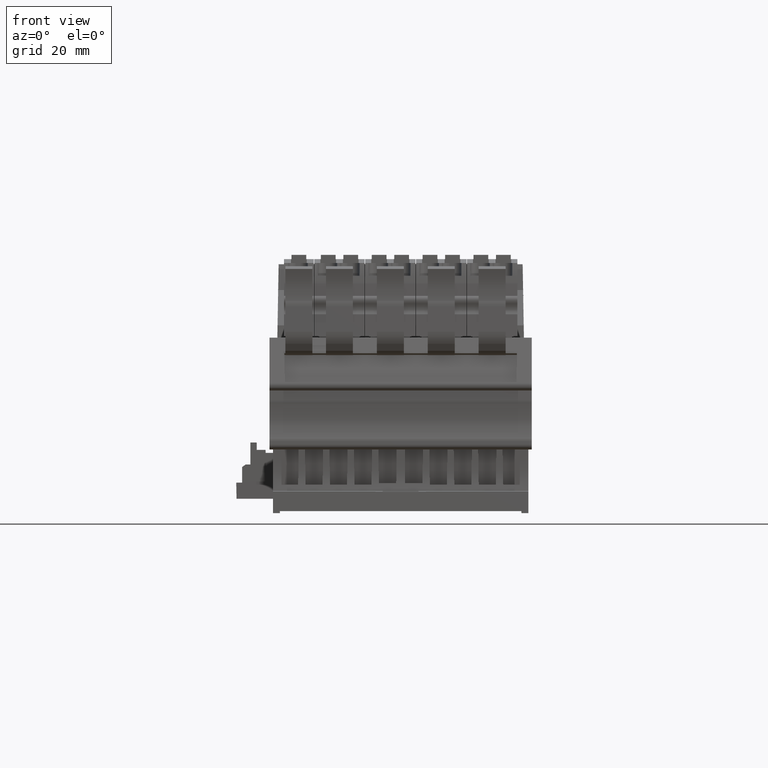
[diagram: clean part render]
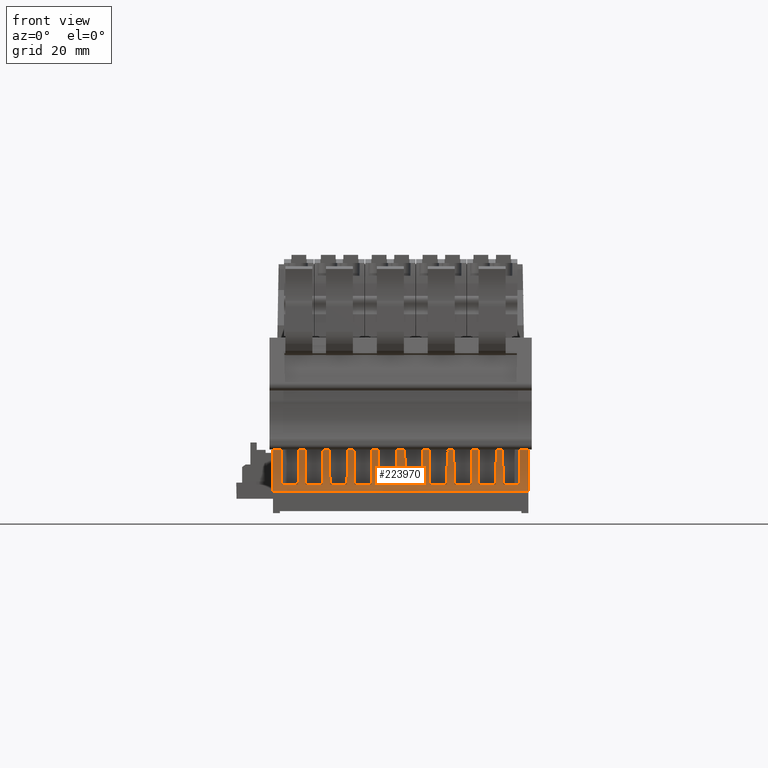
[diagram: same view with one face highlighted and labeled with its STEP entity id]
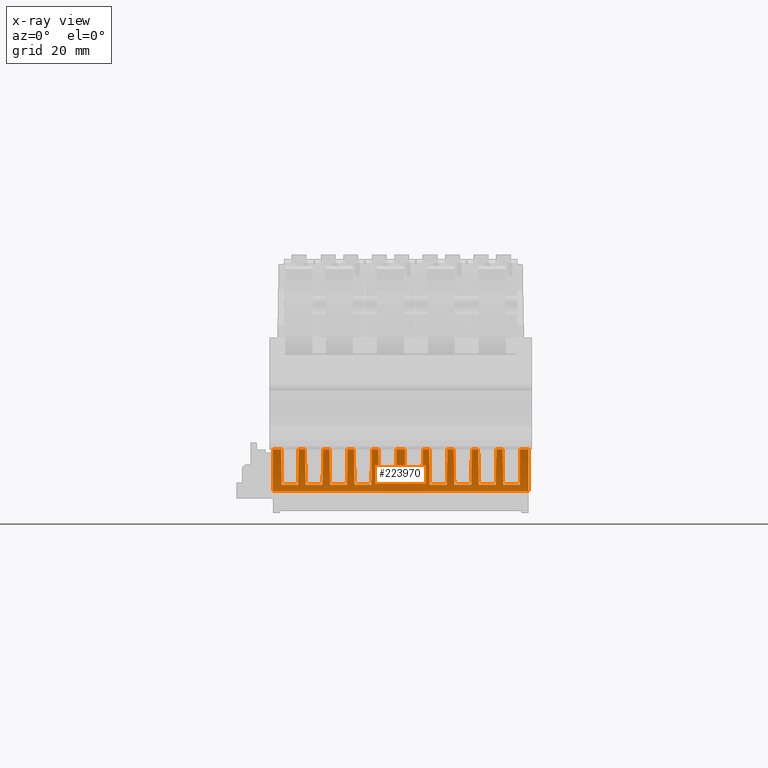
[diagram: x-ray of the same camera — body ghosted, the highlighted face saturated]
A machine part, front view. The second image highlights one B-rep face of the part: STEP entity #223970.
The next image is the same camera in x-ray: the body ghosted, the highlighted face saturated — about 0% of this face is hidden behind the body in this view.
In plain terms, the highlighted cylindrical surface (partial cylindrical patch) has radius 32 mm, axis along (1, -0, -0).
Its self-contained STEP definition (entity closure, byte-faithful):
#213490=CARTESIAN_POINT('',(-21.4767108285961,5.7217056416843,
-42.1775993676842));
#213500=VERTEX_POINT('',#213490);
#213530=CARTESIAN_POINT('',(-52.4261700066343,-2.29953549045469,
-40.8394411980242));
#213540=DIRECTION('',(-0.00212691331871282,-0.1565625763067,
-0.987665751122283));
#213550=DIRECTION('',(0.999997737947607,-0.000351191569832416,
-0.0020977998358443));
#213560=AXIS2_PLACEMENT_3D('',#213530,#213540,#213550);
#213570=CIRCLE('',#213560,32.);
#213580=CARTESIAN_POINT('',(-20.4274352971434,-2.58308955004722,
-40.8634013089389));
#213590=VERTEX_POINT('',#213580);
#213600=EDGE_CURVE('',#213500,#213590,#213570,.T.);
#216730=CARTESIAN_POINT('',(-21.4114944079329,10.5223011952702,
-11.8933262997047));
#216740=VERTEX_POINT('',#216730);
#216890=CARTESIAN_POINT('',(-21.4193854598595,9.94143906872818,
-15.5576606637827));
#216900=VERTEX_POINT('',#216890);
#216930=CARTESIAN_POINT('',(-21.5444742934244,0.733621587912445,
-73.6446325480882));
#216940=DIRECTION('',(0.00212691336374856,0.156562576312103,
0.98766575112133));
#216950=VECTOR('',#216940,1.);
#216960=LINE('',#216930,#216950);
#216970=CARTESIAN_POINT('',(-21.4230113197003,9.67453870141627,
-17.2413858423348));
#216980=VERTEX_POINT('',#216970);
#216990=EDGE_CURVE('',#216980,#216900,#216960,.T.);
#217210=CARTESIAN_POINT('',(-21.4309023716269,9.09367657487417,
-20.9057202064135));
#217220=VERTEX_POINT('',#217210);
#217250=CARTESIAN_POINT('',(-21.433614306859,8.89405040581441,
-22.1650500849334));
#217260=VERTEX_POINT('',#217250);
#217270=EDGE_CURVE('',#217260,#217220,#216960,.T.);
#217490=CARTESIAN_POINT('',(-21.4415369385032,8.31086368907266,
-25.8440489887742));
#217500=VERTEX_POINT('',#217490);
#217530=CARTESIAN_POINT('',(-21.4442488737275,8.11123752059278,
-27.103378863636));
#217540=VERTEX_POINT('',#217530);
#217550=EDGE_CURVE('',#217540,#217500,#216960,.T.);
#217770=CARTESIAN_POINT('',(-21.452171505322,7.52805080751209,
-30.7823777443812));
#217780=VERTEX_POINT('',#217770);
#217810=CARTESIAN_POINT('',(-21.4548834405462,7.32842463903232,
-32.0417076192423));
#217820=VERTEX_POINT('',#217810);
#217830=EDGE_CURVE('',#217820,#217780,#216960,.T.);
#218050=CARTESIAN_POINT('',(-21.4628060720903,6.74523792966375,
-35.7207064765698));
#218060=VERTEX_POINT('',#218050);
#218090=CARTESIAN_POINT('',(-21.4655180073145,6.5456117611836,
-36.9800363514333));
#218100=VERTEX_POINT('',#218090);
#218110=EDGE_CURVE('',#218100,#218060,#216960,.T.);
#218330=CARTESIAN_POINT('',(-21.4731128736271,5.98655192503484,
-40.5068322562919));
#218340=VERTEX_POINT('',#218330);
#218370=EDGE_CURVE('',#213500,#218340,#216960,.T.);
#218750=CARTESIAN_POINT('',(-21.3656859510093,13.8942721251096,
9.37855284043024));
#218760=VERTEX_POINT('',#218750);
#218790=CARTESIAN_POINT('',(-21.3692839059298,13.6294258453234,
7.70778575152322));
#218800=VERTEX_POINT('',#218790);
#218810=EDGE_CURVE('',#218800,#218760,#216960,.T.);
#219030=CARTESIAN_POINT('',(-21.3768787722453,13.0703660089607,
4.18098984531484));
#219040=VERTEX_POINT('',#219030);
#219070=CARTESIAN_POINT('',(-21.3795907074695,12.8707398404806,
2.92165997045179));
#219080=VERTEX_POINT('',#219070);
#219090=EDGE_CURVE('',#219080,#219040,#216960,.T.);
#219310=CARTESIAN_POINT('',(-21.387513339064,12.2875531274002,
-0.757338910291788));
#219320=VERTEX_POINT('',#219310);
#219350=CARTESIAN_POINT('',(-21.3902252742882,12.0879269589201,
-2.01666878515489));
#219360=VERTEX_POINT('',#219350);
#219370=EDGE_CURVE('',#219360,#219320,#216960,.T.);
#219590=CARTESIAN_POINT('',(-21.3981479058828,11.5047402458396,
-5.69566766589879));
#219600=VERTEX_POINT('',#219590);
#219630=CARTESIAN_POINT('',(-21.400859841107,11.3051140773596,
-6.95499754076119));
#219640=VERTEX_POINT('',#219630);
#219650=EDGE_CURVE('',#219640,#219600,#216960,.T.);
#219870=CARTESIAN_POINT('',(-21.4087824727008,10.7219273643299,
-10.6339964211849));
#219880=VERTEX_POINT('',#219870);
#219910=EDGE_CURVE('',#216740,#219880,#216960,.T.);
#220080=CARTESIAN_POINT('',(-52.3611132252795,2.48930897734348,
-10.6292991595946));
#220090=DIRECTION('',(-0.00425317868681373,-0.13942928446276,
-0.990222896677946));
#220100=DIRECTION('',(-0.121795097483673,0.982931933563481,
-0.137879542391537));
#220110=AXIS2_PLACEMENT_3D('',#220080,#220090,#220100);
#220120=ELLIPSE('',#220110,32.004874497405,32.);
#220130=CARTESIAN_POINT('',(-20.3879321681536,3.76117121580512,
-10.945715286829));
#220140=VERTEX_POINT('',#220130);
#220150=EDGE_CURVE('',#216740,#220140,#220120,.T.);
#220790=CARTESIAN_POINT('',(-20.5206558882916,-6.00865200151884,
-72.5780671142676));
#220800=DIRECTION('',(0.00212691336374856,0.156562576312103,
0.98766575112133));
#220810=VECTOR('',#220800,1.);
#220820=LINE('',#220790,#220810);
#220830=CARTESIAN_POINT('',(-20.3954389818025,3.20859295625459,
-14.4316225491388));
#220840=VERTEX_POINT('',#220830);
#220850=EDGE_CURVE('',#220840,#220140,#220820,.T.);
#221040=CARTESIAN_POINT('',(-52.4939334714602,-7.28761954399893,
-72.3064743770078));
#221050=DIRECTION('',(0.00212691336374856,0.156562576312103,
0.98766575112133));
#221060=DIRECTION('',(-0.992546151641188,-0.120017874232211,
0.0211623894456498));
#221070=AXIS2_PLACEMENT_3D('',#221040,#221050,#221060);
#221080=CYLINDRICAL_SURFACE('',#221070,32.);
#221090=CARTESIAN_POINT('',(-52.3817346042169,0.971364584977378,
-20.2051615640176));
#221100=DIRECTION('',(-0.00106349714443128,-0.165111663926263,
-0.986274306371876));
#221110=DIRECTION('',(-0.121864709627565,0.978945272590683,
-0.163753307813135));
#221120=AXIS2_PLACEMENT_3D('',#221090,#221100,#221110);
#221130=ELLIPSE('',#221120,32.0012185083424,32.);
#221140=CARTESIAN_POINT('',(-20.3829224322263,0.69351255760793,
-20.1931507419597));
#221150=VERTEX_POINT('',#221140);
#221160=CARTESIAN_POINT('',(-20.3830113986344,0.683512612386396,
-20.191476560447));
#221170=VERTEX_POINT('',#221160);
#221180=EDGE_CURVE('',#221150,#221170,#221130,.T.);
#221190=ORIENTED_EDGE('',*,*,#221180,.T.);
#221200=CARTESIAN_POINT('',(-20.4951987619725,-7.57117360382822,
-72.3304344893426));
#221210=DIRECTION('',(0.00212691336374856,0.156562576312103,
0.98766575112133));
#221220=VECTOR('',#221210,1.);
#221230=LINE('',#221200,#221220);
#221240=EDGE_CURVE('',#213590,#221150,#221230,.T.);
#221250=ORIENTED_EDGE('',*,*,#221240,.T.);
#221260=ORIENTED_EDGE('',*,*,#213600,.T.);
#221270=ORIENTED_EDGE('',*,*,#218370,.F.);
#221280=CARTESIAN_POINT('',(-52.4224922380916,-2.02881411179225,
-39.1316113954013));
#221290=DIRECTION('',(0.00106349716805899,0.16511166393319,
0.986274306370691));
#221300=DIRECTION('',(-0.121864706862818,0.978945272924318,
-0.163753307876124));
#221310=AXIS2_PLACEMENT_3D('',#221280,#221290,#221300);
#221320=ELLIPSE('',#221310,32.0012185083435,32.);
#221330=CARTESIAN_POINT('',(-20.4382899579961,-1.04309514521563,
-39.3311185771442));
#221340=VERTEX_POINT('',#221330);
#221350=EDGE_CURVE('',#221340,#218340,#221320,.T.);
#221360=ORIENTED_EDGE('',*,*,#221350,.T.);
#221370=CARTESIAN_POINT('',(-20.5097850191131,-6.30586285021422,
-72.5309773222707));
#221380=DIRECTION('',(0.00212691336374856,0.156562576312103,
0.98766575112133));
#221390=VECTOR('',#221380,1.);
#221400=LINE('',#221370,#221390);
#221410=CARTESIAN_POINT('',(-20.4310960359979,-0.513548911210147,
-35.9905074855132));
#221420=VERTEX_POINT('',#221410);
#221430=EDGE_CURVE('',#221340,#221420,#221400,.T.);
#221440=ORIENTED_EDGE('',*,*,#221430,.F.);
#221450=CARTESIAN_POINT('',(-52.4151368246527,-1.48738045612691,
-35.7160092074362));
#221460=DIRECTION('',(-0.00425317880999765,-0.139429284477591,
-0.990222896675328));
#221470=DIRECTION('',(-0.121795104540496,0.982931932710185,
-0.137879542241013));
#221480=AXIS2_PLACEMENT_3D('',#221450,#221460,#221470);
#221490=ELLIPSE('',#221480,32.004874497405,32.);
#221500=EDGE_CURVE('',#218100,#221420,#221490,.T.);
#221510=ORIENTED_EDGE('',*,*,#221500,.T.);
#221520=ORIENTED_EDGE('',*,*,#218110,.F.);
#221530=CARTESIAN_POINT('',(-52.4121056108209,-1.26425211674069,
-34.3084172776953));
#221540=DIRECTION('',(6.15956469857126E-11,0.173648177671915,
0.98480775301133));
#221550=DIRECTION('',(-0.121869342763945,0.97746714543677,
-0.172353830494067));
#221560=AXIS2_PLACEMENT_3D('',#221530,#221540,#221550);
#221570=ELLIPSE('',#221560,32.004874497405,32.);
#221580=CARTESIAN_POINT('',(-20.4278494947831,-0.274570274198441,
-34.4829248908584));
#221590=VERTEX_POINT('',#221580);
#221600=EDGE_CURVE('',#221590,#218060,#221570,.T.);
#221610=ORIENTED_EDGE('',*,*,#221600,.T.);
#221620=CARTESIAN_POINT('',(-20.5097850191138,-6.30586285019371,
-72.530977322274));
#221630=DIRECTION('',(0.00212691336374856,0.156562576312103,
0.98766575112133));
#221640=VECTOR('',#221630,1.);
#221650=LINE('',#221620,#221640);
#221660=CARTESIAN_POINT('',(-20.4204614692298,0.269263966649481,
-31.0521787533076));
#221670=VERTEX_POINT('',#221660);
#221680=EDGE_CURVE('',#221590,#221670,#221650,.T.);
#221690=ORIENTED_EDGE('',*,*,#221680,.F.);
#221700=CARTESIAN_POINT('',(-52.4045022578928,-0.704567578894718,
-30.7776804791344));
#221710=DIRECTION('',(0.00425317868689009,0.139429284462191,
0.990222896678026));
#221720=DIRECTION('',(-0.121795097484014,0.982931933563521,
-0.137879542390956));
#221730=AXIS2_PLACEMENT_3D('',#221700,#221710,#221720);
#221740=ELLIPSE('',#221730,32.0048744974053,32.);
#221750=EDGE_CURVE('',#221670,#217820,#221740,.T.);
#221760=ORIENTED_EDGE('',*,*,#221750,.F.);
#221770=ORIENTED_EDGE('',*,*,#217830,.F.);
#221780=CARTESIAN_POINT('',(-52.4014710440609,-0.481439239508866,
-29.3700885493959));
#221790=DIRECTION('',(6.15118689491212E-11,-0.173648177656517,
-0.984807753014045));
#221800=DIRECTION('',(-0.121869349820335,0.977467144583607,
-0.172353830343107));
#221810=AXIS2_PLACEMENT_3D('',#221780,#221790,#221800);
#221820=ELLIPSE('',#221810,32.0048744974047,32.);
#221830=CARTESIAN_POINT('',(-20.4172149280148,0.508242603652386,
-29.5445961586541));
#221840=VERTEX_POINT('',#221830);
#221850=EDGE_CURVE('',#217780,#221840,#221820,.T.);
#221860=ORIENTED_EDGE('',*,*,#221850,.F.);
#221870=CARTESIAN_POINT('',(-20.5097850191138,-6.30586285019371,
-72.530977322274));
#221880=DIRECTION('',(0.00212691336374856,0.156562576312103,
0.98766575112133));
#221890=VECTOR('',#221880,1.);
#221900=LINE('',#221870,#221890);
#221910=CARTESIAN_POINT('',(-20.4098269024109,1.05207684820518,
-26.1138499977006));
#221920=VERTEX_POINT('',#221910);
#221930=EDGE_CURVE('',#221840,#221920,#221900,.T.);
#221940=ORIENTED_EDGE('',*,*,#221930,.F.);
#221950=CARTESIAN_POINT('',(-52.3938676910741,0.0782453026657475,
-25.8393517235281));
#221960=DIRECTION('',(0.00425317868689009,0.139429284462191,
0.990222896678026));
#221970=DIRECTION('',(-0.121795097484014,0.982931933563521,
-0.137879542390956));
#221980=AXIS2_PLACEMENT_3D('',#221950,#221960,#221970);
#221990=ELLIPSE('',#221980,32.0048744974053,32.);
#222000=EDGE_CURVE('',#221920,#217540,#221990,.T.);
#222010=ORIENTED_EDGE('',*,*,#222000,.F.);
#222020=ORIENTED_EDGE('',*,*,#217550,.F.);
#222030=CARTESIAN_POINT('',(-52.3908364772422,0.301373642051706,
-24.431759793789));
#222040=DIRECTION('',(6.15118689491212E-11,-0.173648177656517,
-0.984807753014045));
#222050=DIRECTION('',(-0.121869349820335,0.977467144583607,
-0.172353830343107));
#222060=AXIS2_PLACEMENT_3D('',#222030,#222040,#222050);
#222070=ELLIPSE('',#222060,32.0048744974047,32.);
#222080=CARTESIAN_POINT('',(-20.4065803611961,1.29105548521296,
-24.6062674030471));
#222090=VERTEX_POINT('',#222080);
#222100=EDGE_CURVE('',#217500,#222090,#222070,.T.);
#222110=ORIENTED_EDGE('',*,*,#222100,.F.);
#222120=CARTESIAN_POINT('',(-20.5097850191138,-6.30586285019371,
-72.530977322274));
#222130=DIRECTION('',(0.00212691336374856,0.156562576312103,
0.98766575112133));
#222140=VECTOR('',#222130,1.);
#222150=LINE('',#222120,#222140);
#222160=CARTESIAN_POINT('',(-20.3991923355425,1.83488973342397,
-21.1755212190159));
#222170=VERTEX_POINT('',#222160);
#222180=EDGE_CURVE('',#222090,#222170,#222150,.T.);
#222190=ORIENTED_EDGE('',*,*,#222180,.F.);
#222200=CARTESIAN_POINT('',(-52.383233124198,0.861058188447005,
-20.9010229412951));
#222210=DIRECTION('',(-0.0042531787987656,-0.139429284475691,
-0.990222896675644));
#222220=DIRECTION('',(-0.121795103893177,0.982931932788534,
-0.137879542254276));
#222230=AXIS2_PLACEMENT_3D('',#222200,#222210,#222220);
#222240=ELLIPSE('',#222230,32.0048744974054,32.);
#222250=EDGE_CURVE('',#217260,#222170,#222240,.T.);
#222260=ORIENTED_EDGE('',*,*,#222250,.T.);
#222270=ORIENTED_EDGE('',*,*,#217270,.F.);
#222280=CARTESIAN_POINT('',(-52.3802019103575,1.08418652846938,
-19.4934310075412));
#222290=DIRECTION('',(-6.16720502791268E-11,-0.173648177671349,
-0.98480775301143));
#222300=DIRECTION('',(-0.121869342763602,0.977467145436912,
-0.172353830493502));
#222310=AXIS2_PLACEMENT_3D('',#222280,#222290,#222300);
#222320=ELLIPSE('',#222310,32.0048744974047,32.);
#222330=CARTESIAN_POINT('',(-20.4068278011379,2.37025937544092,
-19.7202003516271));
#222340=VERTEX_POINT('',#222330);
#222350=EDGE_CURVE('',#217220,#222340,#222320,.T.);
#222360=ORIENTED_EDGE('',*,*,#222350,.F.);
#222370=CARTESIAN_POINT('',(-20.5206558882916,-6.00865200151884,
-72.5780671142676));
#222380=DIRECTION('',(0.00212691336374856,0.156562576312103,
0.98766575112133));
#222390=VECTOR('',#222380,1.);
#222400=LINE('',#222370,#222390);
#222410=CARTESIAN_POINT('',(-20.3993209874891,2.92283763499152,
-16.2342930893169));
#222420=VERTEX_POINT('',#222410);
#222430=EDGE_CURVE('',#222340,#222420,#222400,.T.);
#222440=ORIENTED_EDGE('',*,*,#222430,.F.);
#222450=CARTESIAN_POINT('',(-52.3725503113092,1.64742247419039,
-15.9402903624861));
#222460=DIRECTION('',(0.00319016754183171,0.148001565838664,
0.988981981302167));
#222470=DIRECTION('',(0.121827580537523,-0.981677771307503,
0.146515507510665));
#222480=AXIS2_PLACEMENT_3D('',#222450,#222460,#222470);
#222490=ELLIPSE('',#222480,32.0012185083437,32.);
#222500=EDGE_CURVE('',#222420,#216980,#222490,.T.);
#222510=ORIENTED_EDGE('',*,*,#222500,.F.);
#222520=ORIENTED_EDGE('',*,*,#216990,.F.);
#222530=CARTESIAN_POINT('',(-52.3687648243277,1.92607303162255,
-14.1824398046492));
#222540=DIRECTION('',(0.00106349711237494,0.165111663926457,
0.986274306371878));
#222550=DIRECTION('',(0.121864713243607,-0.978945272152759,
0.163753307740077));
#222560=AXIS2_PLACEMENT_3D('',#222530,#222540,#222550);
#222570=ELLIPSE('',#222560,32.0012185083435,32.);
#222580=EDGE_CURVE('',#220840,#216900,#222570,.T.);
#222590=ORIENTED_EDGE('',*,*,#222580,.T.);
#222600=ORIENTED_EDGE('',*,*,#220850,.F.);
#222610=ORIENTED_EDGE('',*,*,#220150,.T.);
#222620=ORIENTED_EDGE('',*,*,#219910,.F.);
#222630=CARTESIAN_POINT('',(-52.358082011439,2.71243731736584,
-9.22170722584078));
#222640=DIRECTION('',(5.02798579680996E-11,-0.173648177658415,
-0.98480775301371));
#222650=DIRECTION('',(-0.121869349173108,0.977467144661774,
-0.172353830357442));
#222660=AXIS2_PLACEMENT_3D('',#222630,#222640,#222650);
#222670=ELLIPSE('',#222660,32.0048744974051,32.);
#222680=CARTESIAN_POINT('',(-20.3738258953935,3.70211916046513,
-9.39621483545462));
#222690=VERTEX_POINT('',#222680);
#222700=EDGE_CURVE('',#219880,#222690,#222670,.T.);
#222710=ORIENTED_EDGE('',*,*,#222700,.F.);
#222720=CARTESIAN_POINT('',(-20.509785019114,-6.30586285018624,
-72.5309773222752));
#222730=DIRECTION('',(0.00212691336374856,0.156562576312103,
0.98766575112133));
#222740=VECTOR('',#222730,1.);
#222750=LINE('',#222720,#222740);
#222760=CARTESIAN_POINT('',(-20.3664378697903,4.24595340496657,
-5.96546867482511));
#222770=VERTEX_POINT('',#222760);
#222780=EDGE_CURVE('',#222690,#222770,#222750,.T.);
#222790=ORIENTED_EDGE('',*,*,#222780,.F.);
#222800=CARTESIAN_POINT('',(-52.3504786584536,3.27212185943259,
-5.69097040065335));
#222810=DIRECTION('',(0.00425317868689009,0.139429284462191,
0.990222896678026));
#222820=DIRECTION('',(-0.121795097484014,0.982931933563521,
-0.137879542390956));
#222830=AXIS2_PLACEMENT_3D('',#222800,#222810,#222820);
#222840=ELLIPSE('',#222830,32.0048744974053,32.);
#222850=EDGE_CURVE('',#222770,#219640,#222840,.T.);
#222860=ORIENTED_EDGE('',*,*,#222850,.F.);
#222870=ORIENTED_EDGE('',*,*,#219650,.F.);
#222880=CARTESIAN_POINT('',(-52.3474474446217,3.49525019881865,
-4.28337847091351));
#222890=DIRECTION('',(6.15118689491212E-11,-0.173648177656517,
-0.984807753014045));
#222900=DIRECTION('',(-0.121869349820335,0.977467144583607,
-0.172353830343107));
#222910=AXIS2_PLACEMENT_3D('',#222880,#222890,#222900);
#222920=ELLIPSE('',#222910,32.0048744974047,32.);
#222930=CARTESIAN_POINT('',(-20.3631913285754,4.4849320419745,
-4.45788608017062));
#222940=VERTEX_POINT('',#222930);
#222950=EDGE_CURVE('',#219600,#222940,#222920,.T.);
#222960=ORIENTED_EDGE('',*,*,#222950,.F.);
#222970=CARTESIAN_POINT('',(-20.509785019114,-6.30586285018624,
-72.5309773222752));
#222980=DIRECTION('',(0.00212691336374856,0.156562576312103,
0.98766575112133));
#222990=VECTOR('',#222980,1.);
#223000=LINE('',#222970,#222990);
#223010=CARTESIAN_POINT('',(-20.3558033029715,5.02876628652703,
-1.02713991921879));
#223020=VERTEX_POINT('',#223010);
#223030=EDGE_CURVE('',#222940,#223020,#223000,.T.);
#223040=ORIENTED_EDGE('',*,*,#223030,.F.);
#223050=CARTESIAN_POINT('',(-52.3398440916349,4.05493474099305,
-0.752641645047039));
#223060=DIRECTION('',(0.00425317868689009,0.139429284462191,
0.990222896678026));
#223070=DIRECTION('',(-0.121795097484014,0.982931933563521,
-0.137879542390956));
#223080=AXIS2_PLACEMENT_3D('',#223050,#223060,#223070);
#223090=ELLIPSE('',#223080,32.0048744974053,32.);
#223100=EDGE_CURVE('',#223020,#219360,#223090,.T.);
#223110=ORIENTED_EDGE('',*,*,#223100,.F.);
#223120=ORIENTED_EDGE('',*,*,#219370,.F.);
#223130=CARTESIAN_POINT('',(-52.336812877803,4.27806308037922,
0.654950284693477));
#223140=DIRECTION('',(6.15118689491212E-11,-0.173648177656517,
-0.984807753014045));
#223150=DIRECTION('',(-0.121869349820335,0.977467144583607,
-0.172353830343107));
#223160=AXIS2_PLACEMENT_3D('',#223130,#223140,#223150);
#223170=ELLIPSE('',#223160,32.0048744974047,32.);
#223180=CARTESIAN_POINT('',(-20.3525567617567,5.26774492353507,
0.480442675436362));
#223190=VERTEX_POINT('',#223180);
#223200=EDGE_CURVE('',#219320,#223190,#223170,.T.);
#223210=ORIENTED_EDGE('',*,*,#223200,.F.);
#223220=CARTESIAN_POINT('',(-20.509785019114,-6.30586285018624,
-72.5309773222752));
#223230=DIRECTION('',(0.00212691336374856,0.156562576312103,
0.98766575112133));
#223240=VECTOR('',#223230,1.);
#223250=LINE('',#223220,#223240);
#223260=CARTESIAN_POINT('',(-20.3451687361528,5.81157916808752,
3.91118883638769));
#223270=VERTEX_POINT('',#223260);
#223280=EDGE_CURVE('',#223190,#223270,#223250,.T.);
#223290=ORIENTED_EDGE('',*,*,#223280,.F.);
#223300=CARTESIAN_POINT('',(-52.3292095248161,4.83774762255357,
4.18568711055963));
#223310=DIRECTION('',(0.00425317868689009,0.139429284462191,
0.990222896678026));
#223320=DIRECTION('',(-0.121795097484014,0.982931933563521,
-0.137879542390956));
#223330=AXIS2_PLACEMENT_3D('',#223300,#223310,#223320);
#223340=ELLIPSE('',#223330,32.0048744974053,32.);
#223350=EDGE_CURVE('',#223270,#219080,#223340,.T.);
#223360=ORIENTED_EDGE('',*,*,#223350,.F.);
#223370=ORIENTED_EDGE('',*,*,#219090,.F.);
#223380=CARTESIAN_POINT('',(-52.3261783109842,5.06087596193974,
5.59327904030011));
#223390=DIRECTION('',(6.15118689491212E-11,-0.173648177656517,
-0.984807753014045));
#223400=DIRECTION('',(-0.121869349820335,0.977467144583607,
-0.172353830343107));
#223410=AXIS2_PLACEMENT_3D('',#223380,#223390,#223400);
#223420=ELLIPSE('',#223410,32.0048744974047,32.);
#223430=CARTESIAN_POINT('',(-20.341922194938,6.0505578050987,
5.41877143104265));
#223440=VERTEX_POINT('',#223430);
#223450=EDGE_CURVE('',#219040,#223440,#223420,.T.);
#223460=ORIENTED_EDGE('',*,*,#223450,.F.);
#223470=CARTESIAN_POINT('',(-20.5097850191141,-6.30586285018314,
-72.5309773222757));
#223480=DIRECTION('',(0.00212691336374856,0.156562576312103,
0.98766575112133));
#223490=VECTOR('',#223480,1.);
#223500=LINE('',#223470,#223490);
#223510=CARTESIAN_POINT('',(-20.3347282729369,6.58010403931615,
8.75938252401052));
#223520=VERTEX_POINT('',#223510);
#223530=EDGE_CURVE('',#223440,#223520,#223500,.T.);
#223540=ORIENTED_EDGE('',*,*,#223530,.F.);
#223550=CARTESIAN_POINT('',(-52.3188228975403,5.60230961798414,
9.00888123065651));
#223560=DIRECTION('',(-0.00319016751941834,-0.14800156583495,
-0.988981981302795));
#223570=DIRECTION('',(-0.121827577955592,0.981677771619857,
-0.146515507564719));
#223580=AXIS2_PLACEMENT_3D('',#223550,#223560,#223570);
#223590=ELLIPSE('',#223580,32.0012185083439,32.);
#223600=EDGE_CURVE('',#218800,#223520,#223590,.T.);
#223610=ORIENTED_EDGE('',*,*,#223600,.T.);
#223620=ORIENTED_EDGE('',*,*,#218810,.F.);
#223630=CARTESIAN_POINT('',(-52.3151451290475,5.87303099297067,
10.7167110100903));
#223640=DIRECTION('',(0.00212691331871282,0.1565625763067,
0.987665751122283));
#223650=DIRECTION('',(-0.999997737947607,0.000351191569832416,
0.0020977998358443));
#223660=AXIS2_PLACEMENT_3D('',#223630,#223640,#223650);
#223670=CIRCLE('',#223660,32.);
#223680=CARTESIAN_POINT('',(-20.3164104195567,5.58947693337813,
10.6927508991756));
#223690=VERTEX_POINT('',#223680);
#223700=EDGE_CURVE('',#223690,#218760,#223670,.T.);
#223710=ORIENTED_EDGE('',*,*,#223700,.T.);
#223720=CARTESIAN_POINT('',(-20.4951987619723,-7.57117360380548,
-72.3304344893462));
#223730=DIRECTION('',(0.00212691336374856,0.156562576312103,
0.98766575112133));
#223740=VECTOR('',#223730,1.);
#223750=LINE('',#223720,#223740);
#223760=CARTESIAN_POINT('',(-20.3609232843782,2.31287483275721,
-9.97749962342852));
#223770=VERTEX_POINT('',#223760);
#223780=EDGE_CURVE('',#223770,#223690,#223750,.T.);
#223790=ORIENTED_EDGE('',*,*,#223780,.T.);
#223800=CARTESIAN_POINT('',(-52.3595805313717,2.60213092439361,
-9.9175685806719));
#223810=DIRECTION('',(0.00319016748441924,0.14800156582764,
0.988981981304002));
#223820=DIRECTION('',(-0.121827573901934,0.981677772110478,
-0.146515507648093));
#223830=AXIS2_PLACEMENT_3D('',#223800,#223810,#223820);
#223840=ELLIPSE('',#223830,32.0012185083448,32.);
#223850=CARTESIAN_POINT('',(-20.3610126239547,2.30284741852811,
-9.9759987285251));
#223860=VERTEX_POINT('',#223850);
#223870=EDGE_CURVE('',#223860,#223770,#223840,.T.);
#223880=ORIENTED_EDGE('',*,*,#223870,.T.);
#223890=CARTESIAN_POINT('',(-20.4952879149647,-7.58118728353786,
-72.3288469511369));
#223900=DIRECTION('',(0.00212691336374856,0.156562576312103,
0.98766575112133));
#223910=VECTOR('',#223900,1.);
#223920=LINE('',#223890,#223910);
#223930=EDGE_CURVE('',#221170,#223860,#223920,.T.);
#223940=ORIENTED_EDGE('',*,*,#223930,.T.);
#223950=EDGE_LOOP('',(#223940,#223880,#223790,#223710,#223620,#223610,
#223540,#223460,#223370,#223360,#223290,#223210,#223120,#223110,#223040,
#222960,#222870,#222860,#222790,#222710,#222620,#222610,#222600,#222590,
#222520,#222510,#222440,#222360,#222270,#222260,#222190,#222110,#222020,
#222010,#221940,#221860,#221770,#221760,#221690,#221610,#221520,#221510,
#221440,#221360,#221270,#221260,#221250,#221190));
#223960=FACE_OUTER_BOUND('',#223950,.T.);
#223970=ADVANCED_FACE('',(#223960),#221080,.F.);